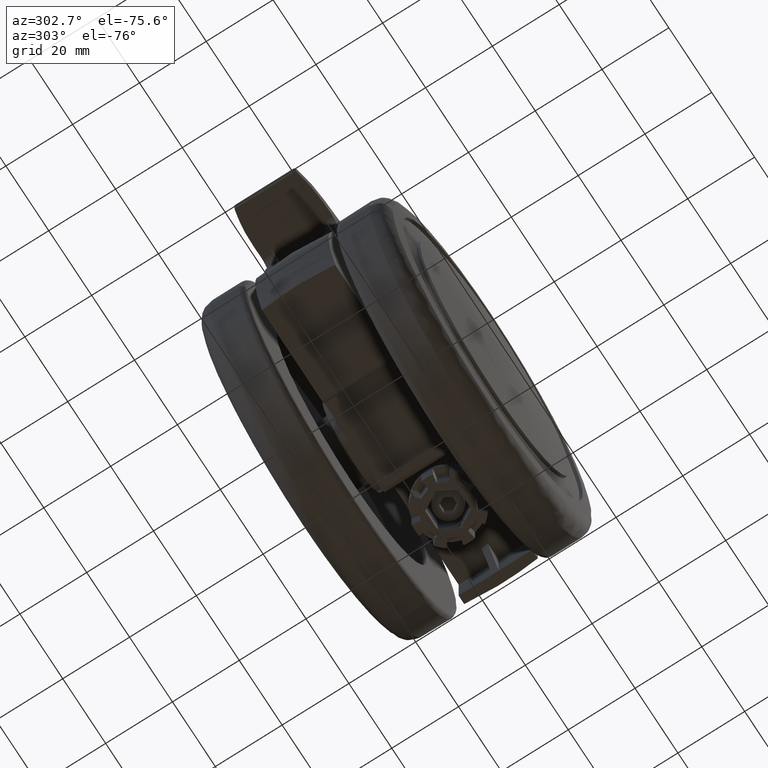
[diagram: clean part render]
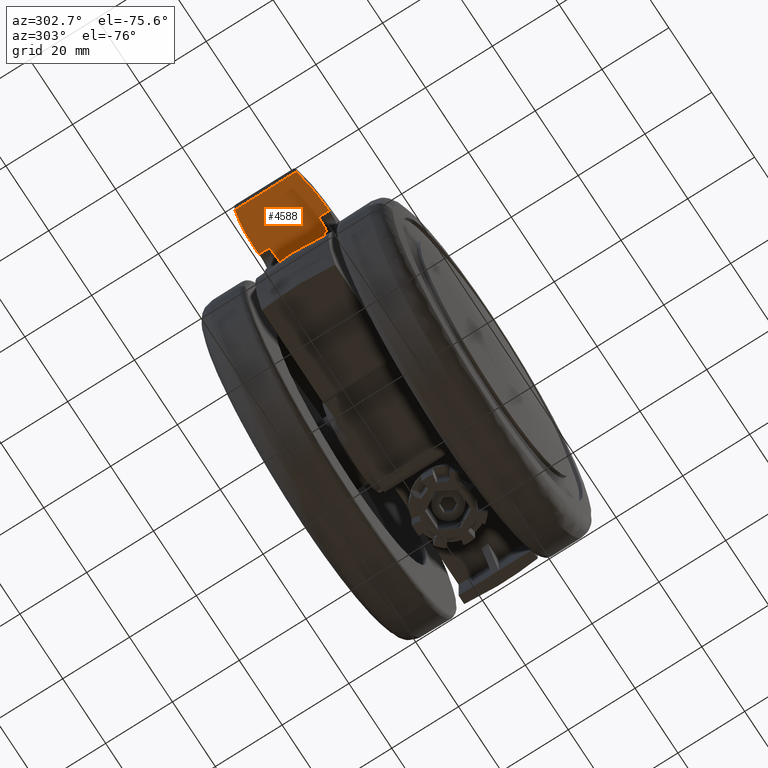
[diagram: same view with one face highlighted and labeled with its STEP entity id]
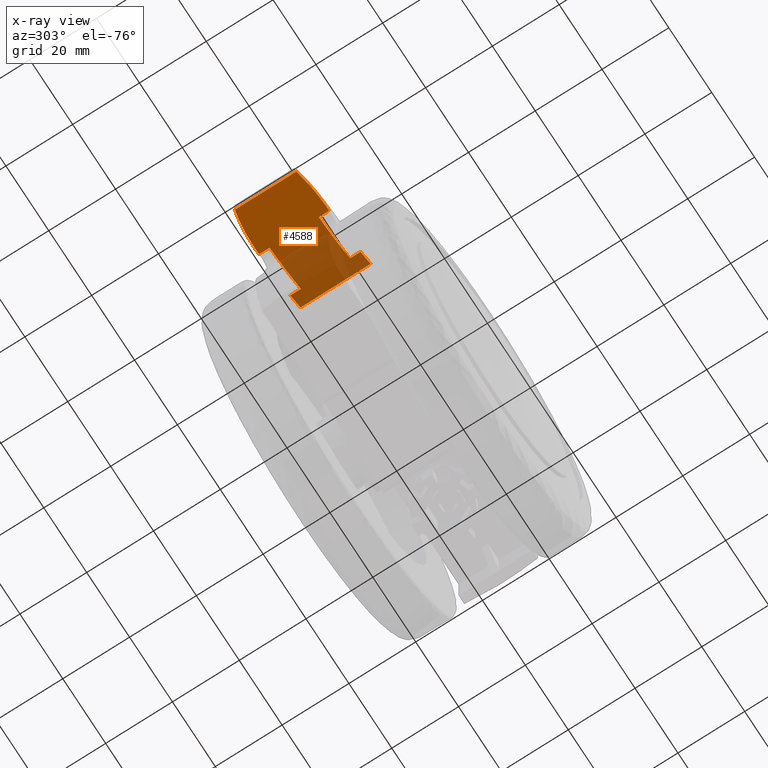
[diagram: x-ray of the same camera — body ghosted, the highlighted face saturated]
A machine part, auxiliary view. The second image highlights one B-rep face of the part: STEP entity #4588.
The next image is the same camera in x-ray: the body ghosted, the highlighted face saturated — about 39% of this face is hidden behind the body in this view.
In plain terms, the highlighted face is a freeform B-spline surface patch.
Its self-contained STEP definition (entity closure, byte-faithful):
#2490=CARTESIAN_POINT('',(-61.175861474155802,9.186496742477390,30.759509025304499));
#2491=VERTEX_POINT('',#2490);
#2511=CARTESIAN_POINT('',(-61.175861474155802,-9.186496742477400,30.759509025304450));
#2512=VERTEX_POINT('',#2511);
#2513=CARTESIAN_POINT('',(-61.175861474155802,-9.186496742477400,30.759509025304450));
#2514=CARTESIAN_POINT('',(-61.175861474155802,9.186496742477390,30.759509025304499));
#2515=QUASI_UNIFORM_CURVE('',1,(#2513,#2514),.UNSPECIFIED.,.F.,.U.);
#2516=EDGE_CURVE('',#2512,#2491,#2515,.T.);
#2666=CARTESIAN_POINT('',(-60.981579278465993,-9.258811102751700,30.753299136275700));
#2667=VERTEX_POINT('',#2666);
#2668=CARTESIAN_POINT('',(-60.981579278465993,-9.258811102751700,30.753299136275700));
#2669=CARTESIAN_POINT('',(-61.049566928406001,-9.243373360360593,30.755339959647710));
#2670=CARTESIAN_POINT('',(-61.114500340308787,-9.219734081395785,30.757428320332490));
#2671=CARTESIAN_POINT('',(-61.175861474155802,-9.186496742477390,30.759509025304499));
#2672=QUASI_UNIFORM_CURVE('',3,(#2668,#2669,#2670,#2671),.UNSPECIFIED.,.F.,.U.);
#2673=EDGE_CURVE('',#2667,#2512,#2672,.T.);
#2781=CARTESIAN_POINT('',(-60.981579278470392,9.258811102750709,30.753299136275800));
#2782=VERTEX_POINT('',#2781);
#2813=CARTESIAN_POINT('',(-61.175861474155802,9.186496742477390,30.759509025304499));
#2814=CARTESIAN_POINT('',(-61.114500340310137,9.219734081395060,30.757428320332540));
#2815=CARTESIAN_POINT('',(-61.049566928408829,9.243373360359554,30.755339959647770));
#2816=CARTESIAN_POINT('',(-60.981579278470392,9.258811102750700,30.753299136275800));
#2817=QUASI_UNIFORM_CURVE('',3,(#2813,#2814,#2815,#2816),.UNSPECIFIED.,.F.,.U.);
#2818=EDGE_CURVE('',#2491,#2782,#2817,.T.);
#3438=CARTESIAN_POINT('',(-28.542216812119651,-10.434002493246441,41.452697836797348));
#3439=VERTEX_POINT('',#3438);
#3475=CARTESIAN_POINT('',(-28.784401535538152,-10.500000000000000,41.263134189135748));
#3476=VERTEX_POINT('',#3475);
#3490=CARTESIAN_POINT('',(-28.542216812119651,-10.434002493246499,41.452697836797348));
#3491=CARTESIAN_POINT('',(-28.580158611868690,-10.456798126449620,41.422811266055888));
#3492=CARTESIAN_POINT('',(-28.619473140166971,-10.473042029417091,41.391932762947619));
#3493=CARTESIAN_POINT('',(-28.700407552091480,-10.494677120737240,41.328572820364947));
#3494=CARTESIAN_POINT('',(-28.742342901239571,-10.500000000000000,41.295846365829078));
#3495=CARTESIAN_POINT('',(-28.784401535538152,-10.500000000000000,41.263134189135748));
#3496=B_SPLINE_CURVE_WITH_KNOTS('',3,(#3490,#3491,#3492,#3493,#3494,#3495),.UNSPECIFIED.,.F.,.U.,(4,2,4),(0.0,0.500000000000000,1.0),.UNSPECIFIED.);
#3497=EDGE_CURVE('',#3439,#3476,#3496,.T.);
#3548=CARTESIAN_POINT('',(-28.784401535538152,10.500000000000000,41.263134189135748));
#3549=VERTEX_POINT('',#3548);
#3550=CARTESIAN_POINT('',(-28.542216812119651,10.434002493246499,41.452697836797348));
#3551=VERTEX_POINT('',#3550);
#3552=CARTESIAN_POINT('',(-28.784401535538152,10.500000000000000,41.263134189135748));
#3553=CARTESIAN_POINT('',(-28.742387469123958,10.500000000000000,41.295811702019073));
#3554=CARTESIAN_POINT('',(-28.701118177042868,10.494799562061189,41.328017666432700));
#3555=CARTESIAN_POINT('',(-28.640394093853459,10.478667440162351,41.375554114596682));
#3556=CARTESIAN_POINT('',(-28.620351046107238,10.471888915171480,41.391269541351207));
#3557=CARTESIAN_POINT('',(-28.580698613104008,10.455239978367080,41.422408349919912));
#3558=CARTESIAN_POINT('',(-28.561159637335479,10.445383442445189,41.437776665698451));
#3559=CARTESIAN_POINT('',(-28.542216812119651,10.434002493246499,41.452697836797348));
#3560=B_SPLINE_CURVE_WITH_KNOTS('',3,(#3552,#3553,#3554,#3555,#3556,#3557,#3558,#3559),.UNSPECIFIED.,.F.,.U.,(4,2,2,4),(0.0,0.500000000000007,0.750000000000004,1.0),.UNSPECIFIED.);
#3561=EDGE_CURVE('',#3549,#3551,#3560,.T.);
#3629=CARTESIAN_POINT('',(-28.542216812119651,10.434002493246499,41.452697836797348));
#3630=CARTESIAN_POINT('',(-28.542216812119651,-10.434002493246441,41.452697836797348));
#3631=QUASI_UNIFORM_CURVE('',1,(#3629,#3630),.UNSPECIFIED.,.F.,.U.);
#3632=EDGE_CURVE('',#3551,#3439,#3631,.T.);
#3672=CARTESIAN_POINT('',(-47.874721345608897,7.350000000000180,32.096587081686749));
#3673=VERTEX_POINT('',#3672);
#3674=CARTESIAN_POINT('',(-33.268264552550399,7.350000000000180,38.152944750049400));
#3675=VERTEX_POINT('',#3674);
#3676=CARTESIAN_POINT('',(-47.874721345608897,7.350000000000180,32.096587081686749));
#3677=CARTESIAN_POINT('',(-40.086568274595763,7.350000000000160,33.955245934784813));
#3678=CARTESIAN_POINT('',(-33.268264552550413,7.350000000000160,38.152944750049407));
#3686=(BOUNDED_CURVE()B_SPLINE_CURVE(2,(#3676,#3677,#3678),.UNSPECIFIED.,.F.,.U.)CURVE()GEOMETRIC_REPRESENTATION_ITEM()QUASI_UNIFORM_CURVE()RATIONAL_B_SPLINE_CURVE((1.0,0.987419462511614,1.0))REPRESENTATION_ITEM(''));
#3687=EDGE_CURVE('',#3673,#3675,#3686,.T.);
#3804=CARTESIAN_POINT('',(-47.874721345608897,10.500000000000000,32.096587081686749));
#3805=VERTEX_POINT('',#3804);
#3806=CARTESIAN_POINT('',(-47.874721345608897,10.500000000000000,32.096587081686749));
#3807=CARTESIAN_POINT('',(-47.874721345608897,7.350000000000180,32.096587081686749));
#3808=QUASI_UNIFORM_CURVE('',1,(#3806,#3807),.UNSPECIFIED.,.F.,.U.);
#3809=EDGE_CURVE('',#3805,#3673,#3808,.T.);
#4013=CARTESIAN_POINT('',(-33.268264552549397,10.500000000000000,38.152944750050047));
#4014=VERTEX_POINT('',#4013);
#4030=CARTESIAN_POINT('',(-33.268264552549397,10.500000000000000,38.152944750050047));
#4031=CARTESIAN_POINT('',(-33.268264552550399,7.350000000000180,38.152944750049400));
#4032=QUASI_UNIFORM_CURVE('',1,(#4030,#4031),.UNSPECIFIED.,.F.,.U.);
#4033=EDGE_CURVE('',#4014,#3675,#4032,.T.);
#4043=CARTESIAN_POINT('',(-47.874721239854701,-7.350000000000190,32.096586638555948));
#4044=VERTEX_POINT('',#4043);
#4045=CARTESIAN_POINT('',(-33.268264552549397,-7.350000000000190,38.152944750050047));
#4046=VERTEX_POINT('',#4045);
#4047=CARTESIAN_POINT('',(-47.874721239854701,-7.350000000000190,32.096586638555948));
#4048=CARTESIAN_POINT('',(-40.086568274595137,-7.350000000000191,33.955245934784990));
#4049=CARTESIAN_POINT('',(-33.268264552549390,-7.350000000000190,38.152944750050032));
#4057=(BOUNDED_CURVE()B_SPLINE_CURVE(2,(#4047,#4048,#4049),.UNSPECIFIED.,.F.,.U.)CURVE()GEOMETRIC_REPRESENTATION_ITEM()QUASI_UNIFORM_CURVE()RATIONAL_B_SPLINE_CURVE((1.0,0.987419462511612,1.0))REPRESENTATION_ITEM(''));
#4058=EDGE_CURVE('',#4044,#4046,#4057,.T.);
#4182=CARTESIAN_POINT('',(-47.874721345608897,-10.500000000000000,32.096587081686749));
#4183=VERTEX_POINT('',#4182);
#4199=CARTESIAN_POINT('',(-47.874721345608897,-10.500000000000000,32.096587081686749));
#4200=CARTESIAN_POINT('',(-47.874721239854701,-7.350000000000190,32.096586638555948));
#4201=QUASI_UNIFORM_CURVE('',1,(#4199,#4200),.UNSPECIFIED.,.F.,.U.);
#4202=EDGE_CURVE('',#4183,#4044,#4201,.T.);
#4383=CARTESIAN_POINT('',(-33.268264552549397,-10.500000000000000,38.152944750050047));
#4384=VERTEX_POINT('',#4383);
#4385=CARTESIAN_POINT('',(-33.268264552549397,-10.500000000000000,38.152944750050047));
#4386=CARTESIAN_POINT('',(-33.268264552549397,-7.350000000000190,38.152944750050047));
#4387=QUASI_UNIFORM_CURVE('',1,(#4385,#4386),.UNSPECIFIED.,.F.,.U.);
#4388=EDGE_CURVE('',#4384,#4046,#4387,.T.);
#4423=CARTESIAN_POINT('',(-49.910069000017103,10.500000000000000,31.655437128421259));
#4424=VERTEX_POINT('',#4423);
#4425=CARTESIAN_POINT('',(-49.910069000017103,10.500000000000000,31.655437128421259));
#4426=CARTESIAN_POINT('',(-51.765369239821382,10.499999999999369,31.293592542246270));
#4427=CARTESIAN_POINT('',(-53.615990781614713,10.397037140086759,31.041502760330509));
#4428=CARTESIAN_POINT('',(-57.306879978831859,9.984698230403266,30.743795833787459));
#4429=CARTESIAN_POINT('',(-59.147154788747720,9.675348116958093,30.698234188801830));
#4430=CARTESIAN_POINT('',(-60.981579278470392,9.258811102750693,30.753299136275839));
#4431=B_SPLINE_CURVE_WITH_KNOTS('',3,(#4425,#4426,#4427,#4428,#4429,#4430),.UNSPECIFIED.,.F.,.U.,(4,2,4),(0.0,0.500000000000000,1.0),.UNSPECIFIED.);
#4432=EDGE_CURVE('',#4424,#2782,#4431,.T.);
#4460=CARTESIAN_POINT('',(-49.910069000000000,-10.500000000000000,31.655437128415400));
#4461=VERTEX_POINT('',#4460);
#4462=CARTESIAN_POINT('',(-60.981579278465993,-9.258811102751698,30.753299136275690));
#4463=CARTESIAN_POINT('',(-59.170583945242512,-9.670028131890996,30.698937474916491));
#4464=CARTESIAN_POINT('',(-57.338546470135043,-9.980258801645141,30.742135233935009));
#4465=CARTESIAN_POINT('',(-55.021812424384912,-10.240199760363740,30.927892960667290));
#4466=CARTESIAN_POINT('',(-54.557127320399331,-10.285776765478561,30.971653072047381));
#4467=CARTESIAN_POINT('',(-53.858072910377103,-10.344437452111571,31.047456921690230));
#4468=CARTESIAN_POINT('',(-53.624661611341800,-10.362374389000660,31.074428729140330));
#4469=CARTESIAN_POINT('',(-53.158557079935093,-10.394908589670990,31.131623899796999));
#4470=CARTESIAN_POINT('',(-52.925693540680221,-10.409521277420730,31.161864587290079));
#4471=CARTESIAN_POINT('',(-51.762322606079493,-10.474373880674131,31.321288287028761));
#4472=CARTESIAN_POINT('',(-50.834653249869042,-10.500000000000030,31.475112780850338));
#4473=CARTESIAN_POINT('',(-49.910069000000000,-10.500000000000000,31.655437128415400));
#4474=B_SPLINE_CURVE_WITH_KNOTS('',3,(#4462,#4463,#4464,#4465,#4466,#4467,#4468,#4469,#4470,#4471,#4472,#4473),.UNSPECIFIED.,.F.,.U.,(4,2,2,2,2,4),(0.0,0.500000000000003,0.625000000000004,0.687500000000004,0.750000000000003,1.0),.UNSPECIFIED.);
#4475=EDGE_CURVE('',#2667,#4461,#4474,.T.);
#4506=CARTESIAN_POINT('',(-27.262787023437649,11.025000000000000,42.495170312794343));
#4507=CARTESIAN_POINT('',(-27.262787023437649,-11.038125000000001,42.495170312794343));
#4508=CARTESIAN_POINT('',(-42.720102457608490,11.025000000000006,29.470327555289131));
#4509=CARTESIAN_POINT('',(-42.720102457608490,-11.038125000000004,29.470327555289131));
#4510=CARTESIAN_POINT('',(-62.886417734518716,11.025000000000002,30.846865764511467));
#4511=CARTESIAN_POINT('',(-62.886417734518716,-11.038125000000004,30.846865764511467));
#4519=(BOUNDED_SURFACE()B_SPLINE_SURFACE(1,2,((#4506,#4508,#4510),(#4507,#4509,#4511)),.UNSPECIFIED.,.F.,.F.,.U.)B_SPLINE_SURFACE_WITH_KNOTS((2,2),(3,3),(0.0,22.063124999999999),(0.0,38.897319754248407),.UNSPECIFIED.)GEOMETRIC_REPRESENTATION_ITEM()RATIONAL_B_SPLINE_SURFACE(((1.0,0.925571745507930,0.996690812242119),(1.0,0.925571745507930,0.996690812242119)))REPRESENTATION_ITEM('')SURFACE());
#4520=ORIENTED_EDGE('',*,*,#3632,.T.);
#4521=ORIENTED_EDGE('',*,*,#3497,.T.);
#4522=CARTESIAN_POINT('',(-33.268264552549397,-10.500000000000000,38.152944750050032));
#4523=CARTESIAN_POINT('',(-30.941345665690299,-10.499999999999998,39.585515819450208));
#4524=CARTESIAN_POINT('',(-28.784401535538159,-10.500000000000000,41.263134189135741));
#4532=(BOUNDED_CURVE()B_SPLINE_CURVE(2,(#4522,#4523,#4524),.UNSPECIFIED.,.F.,.U.)CURVE()GEOMETRIC_REPRESENTATION_ITEM()QUASI_UNIFORM_CURVE()RATIONAL_B_SPLINE_CURVE((1.0,0.998509974617063,1.0))REPRESENTATION_ITEM(''));
#4533=EDGE_CURVE('',#4384,#3476,#4532,.T.);
#4534=ORIENTED_EDGE('',*,*,#4533,.F.);
#4535=ORIENTED_EDGE('',*,*,#4388,.T.);
#4536=ORIENTED_EDGE('',*,*,#4058,.F.);
#4537=ORIENTED_EDGE('',*,*,#4202,.F.);
#4538=CARTESIAN_POINT('',(-49.910069000000028,-10.500000000000000,31.655437128415429));
#4539=CARTESIAN_POINT('',(-48.887800417327540,-10.499999999999998,31.854813134693703));
#4540=CARTESIAN_POINT('',(-47.874721345608897,-10.500000000000000,32.096587081686749));
#4548=(BOUNDED_CURVE()B_SPLINE_CURVE(2,(#4538,#4539,#4540),.UNSPECIFIED.,.F.,.U.)CURVE()GEOMETRIC_REPRESENTATION_ITEM()QUASI_UNIFORM_CURVE()RATIONAL_B_SPLINE_CURVE((1.0,0.999783113810439,1.0))REPRESENTATION_ITEM(''));
#4549=EDGE_CURVE('',#4461,#4183,#4548,.T.);
#4550=ORIENTED_EDGE('',*,*,#4549,.F.);
#4551=ORIENTED_EDGE('',*,*,#4475,.F.);
#4552=ORIENTED_EDGE('',*,*,#2673,.T.);
#4553=ORIENTED_EDGE('',*,*,#2516,.T.);
#4554=ORIENTED_EDGE('',*,*,#2818,.T.);
#4555=ORIENTED_EDGE('',*,*,#4432,.F.);
#4556=CARTESIAN_POINT('',(-49.910069000017103,10.500000000000000,31.655437128421259));
#4557=CARTESIAN_POINT('',(-48.887800417335178,10.500000000000004,31.854813134691888));
#4558=CARTESIAN_POINT('',(-47.874721345608897,10.500000000000000,32.096587081686749));
#4566=(BOUNDED_CURVE()B_SPLINE_CURVE(2,(#4556,#4557,#4558),.UNSPECIFIED.,.F.,.U.)CURVE()GEOMETRIC_REPRESENTATION_ITEM()QUASI_UNIFORM_CURVE()RATIONAL_B_SPLINE_CURVE((1.0,0.999783113810436,1.0))REPRESENTATION_ITEM(''));
#4567=EDGE_CURVE('',#4424,#3805,#4566,.T.);
#4568=ORIENTED_EDGE('',*,*,#4567,.T.);
#4569=ORIENTED_EDGE('',*,*,#3809,.T.);
#4570=ORIENTED_EDGE('',*,*,#3687,.T.);
#4571=ORIENTED_EDGE('',*,*,#4033,.F.);
#4572=CARTESIAN_POINT('',(-33.268264552549397,10.500000000000000,38.152944750050032));
#4573=CARTESIAN_POINT('',(-30.941345665690299,10.499999999999998,39.585515819450208));
#4574=CARTESIAN_POINT('',(-28.784401535538159,10.500000000000000,41.263134189135741));
#4582=(BOUNDED_CURVE()B_SPLINE_CURVE(2,(#4572,#4573,#4574),.UNSPECIFIED.,.F.,.U.)CURVE()GEOMETRIC_REPRESENTATION_ITEM()QUASI_UNIFORM_CURVE()RATIONAL_B_SPLINE_CURVE((1.0,0.998509974617063,1.0))REPRESENTATION_ITEM(''));
#4583=EDGE_CURVE('',#4014,#3549,#4582,.T.);
#4584=ORIENTED_EDGE('',*,*,#4583,.T.);
#4585=ORIENTED_EDGE('',*,*,#3561,.T.);
#4586=EDGE_LOOP('',(#4520,#4521,#4534,#4535,#4536,#4537,#4550,#4551,#4552,#4553,#4554,#4555,#4568,#4569,#4570,#4571,#4584,#4585));
#4587=FACE_OUTER_BOUND('',#4586,.T.);
#4588=ADVANCED_FACE('',(#4587),#4519,.T.);